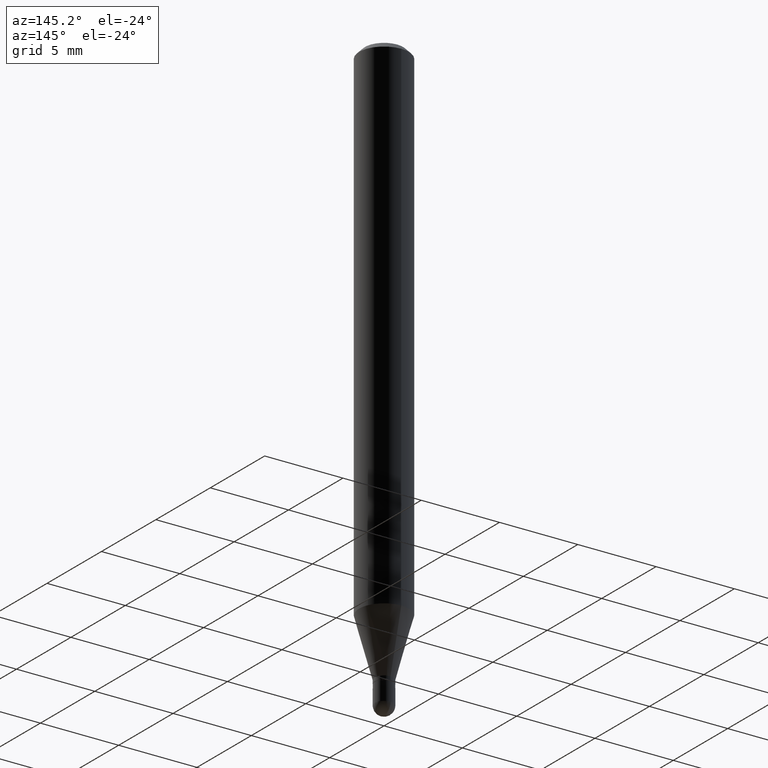
[diagram: clean part render]
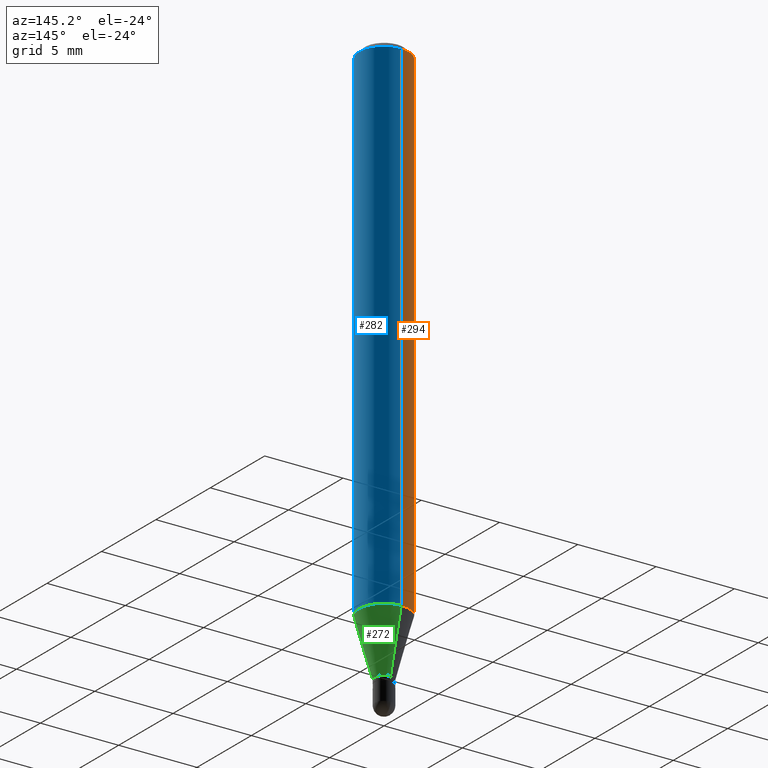
[diagram: same view with three faces highlighted in distinct colors, each labeled with its STEP entity id]
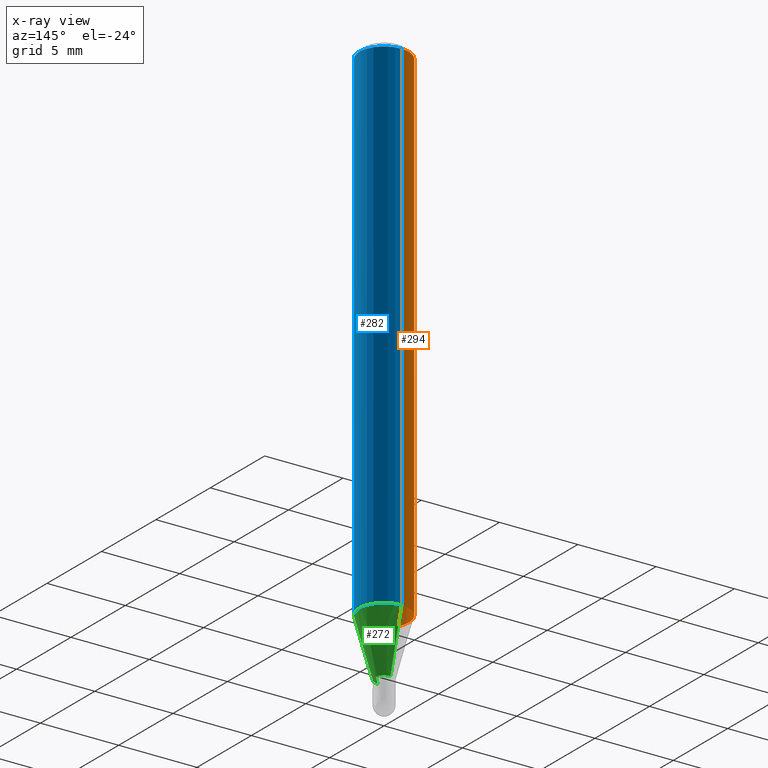
[diagram: x-ray of the same camera — body ghosted, the three highlighted faces saturated]
A machine part, auxiliary view with three faces highlighted in distinct colors.
The next image is the same camera in x-ray (body ghosted, the three faces saturated) — at least one of them is partly hidden behind the body in this view.
Their STEP definitions:

[orange] entity #294 — the highlighted cylindrical surface (edge-blend (fillet) strip) has radius 1.5875 mm, axis along (-0, 0, 1).
#9 = DIRECTION ( 'NONE',  ( -6.982962677686265922E-15, -1.000000000000000000, 3.491488316391355561E-15 ) ) ;
#12 = VERTEX_POINT ( 'NONE', #70 ) ;
#38 = AXIS2_PLACEMENT_3D ( 'NONE', #206, #88, #9 ) ;
#62 = LINE ( 'NONE', #106, #351 ) ;
#70 = CARTESIAN_POINT ( 'NONE',  ( -4.364351673553912750E-16, -0.06250000000000005551, -0.01500000000000011047 ) ) ;
#77 = EDGE_CURVE ( 'NONE', #389, #12, #337, .T. ) ;
#88 = DIRECTION ( 'NONE',  ( -2.445463933789263379E-29, 3.491488316391355561E-15, 1.000000000000000000 ) ) ;
#92 = DIRECTION ( 'NONE',  ( -2.445463933789263379E-29, 3.491488316391355561E-15, 1.000000000000000000 ) ) ;
#96 = CIRCLE ( 'NONE', #235, 0.06250000000000000000 ) ;
#106 = CARTESIAN_POINT ( 'NONE',  ( 4.440892098500625669E-16, 0.06250000000000000000, -2.182180197744597225E-16 ) ) ;
#130 = DIRECTION ( 'NONE',  ( -2.445463933789263379E-29, 3.491488316391355561E-15, 1.000000000000000000 ) ) ;
#131 = CARTESIAN_POINT ( 'NONE',  ( 4.440892098500934804E-16, 0.06249999999999553135, -1.273450018504814762 ) ) ;
#138 = DIRECTION ( 'NONE',  ( -2.445463933789263099E-29, 3.491488316391355955E-15, 1.000000000000000000 ) ) ;
#141 = CIRCLE ( 'NONE', #396, 0.06250000000000000000 ) ;
#187 = CARTESIAN_POINT ( 'NONE',  ( -4.364351673553606573E-16, -0.06250000000000446865, -1.273450018504814096 ) ) ;
#206 = CARTESIAN_POINT ( 'NONE',  ( 0.000000000000000000, 0.000000000000000000, 0.000000000000000000 ) ) ;
#210 = CARTESIAN_POINT ( 'NONE',  ( 3.114176091736793656E-29, -4.446235861117914708E-15, -1.273450018504814318 ) ) ;
#221 = ORIENTED_EDGE ( 'NONE', *, *, #301, .T. ) ;
#234 = ORIENTED_EDGE ( 'NONE', *, *, #293, .F. ) ;
#235 = AXIS2_PLACEMENT_3D ( 'NONE', #482, #92, #251 ) ;
#243 = EDGE_CURVE ( 'NONE', #353, #355, #62, .T. ) ;
#250 = CARTESIAN_POINT ( 'NONE',  ( 4.440892098500938748E-16, 0.06249999999999995143, -0.01500000000000054588 ) ) ;
#251 = DIRECTION ( 'NONE',  ( -6.982962677686265922E-15, -1.000000000000000000, 3.483106191921935554E-15 ) ) ;
#270 = DIRECTION ( 'NONE',  ( -2.445463933789263099E-29, 3.491488316391355955E-15, 1.000000000000000000 ) ) ;
#293 = EDGE_CURVE ( 'NONE', #355, #12, #96, .T. ) ;
#294 = ADVANCED_FACE ( 'NONE', ( #329 ), #418, .T. ) ;
#301 = EDGE_CURVE ( 'NONE', #353, #389, #141, .T. ) ;
#329 = FACE_OUTER_BOUND ( 'NONE', #459, .T. ) ;
#337 = LINE ( 'NONE', #493, #408 ) ;
#351 = VECTOR ( 'NONE', #270, 39.37007874015748143 ) ;
#353 = VERTEX_POINT ( 'NONE', #131 ) ;
#355 = VERTEX_POINT ( 'NONE', #250 ) ;
#389 = VERTEX_POINT ( 'NONE', #187 ) ;
#396 = AXIS2_PLACEMENT_3D ( 'NONE', #210, #130, #487 ) ;
#401 = ORIENTED_EDGE ( 'NONE', *, *, #243, .F. ) ;
#408 = VECTOR ( 'NONE', #138, 39.37007874015748143 ) ;
#418 = CYLINDRICAL_SURFACE ( 'NONE', #38, 0.06250000000000000000 ) ;
#459 = EDGE_LOOP ( 'NONE', ( #401, #221, #491, #234 ) ) ;
#482 = CARTESIAN_POINT ( 'NONE',  ( 3.668195900683975486E-31, -5.237232474587148071E-17, -0.01500000000000032904 ) ) ;
#487 = DIRECTION ( 'NONE',  ( -6.982962677686265922E-15, -1.000000000000000000, 4.370956789862821150E-15 ) ) ;
#491 = ORIENTED_EDGE ( 'NONE', *, *, #77, .T. ) ;
#493 = CARTESIAN_POINT ( 'NONE',  ( -4.364351673553916201E-16, -0.06250000000000000000, 2.182180197744597225E-16 ) ) ;

[blue] entity #282 — the highlighted cylindrical surface (edge-blend (fillet) strip) has radius 1.5875 mm, axis along (-0, 0, 1).
#12 = VERTEX_POINT ( 'NONE', #70 ) ;
#62 = LINE ( 'NONE', #106, #351 ) ;
#70 = CARTESIAN_POINT ( 'NONE',  ( -4.364351673553912750E-16, -0.06250000000000005551, -0.01500000000000011047 ) ) ;
#74 = DIRECTION ( 'NONE',  ( -6.982962677686265922E-15, -1.000000000000000000, 3.491488316391355561E-15 ) ) ;
#77 = EDGE_CURVE ( 'NONE', #389, #12, #337, .T. ) ;
#83 = CYLINDRICAL_SURFACE ( 'NONE', #324, 0.06250000000000000000 ) ;
#97 = ORIENTED_EDGE ( 'NONE', *, *, #120, .F. ) ;
#106 = CARTESIAN_POINT ( 'NONE',  ( 4.440892098500625669E-16, 0.06250000000000000000, -2.182180197744597225E-16 ) ) ;
#117 = ORIENTED_EDGE ( 'NONE', *, *, #467, .T. ) ;
#120 = EDGE_CURVE ( 'NONE', #12, #355, #121, .T. ) ;
#121 = CIRCLE ( 'NONE', #445, 0.06250000000000000000 ) ;
#131 = CARTESIAN_POINT ( 'NONE',  ( 4.440892098500934804E-16, 0.06249999999999553135, -1.273450018504814762 ) ) ;
#132 = CIRCLE ( 'NONE', #212, 0.06250000000000000000 ) ;
#138 = DIRECTION ( 'NONE',  ( -2.445463933789263099E-29, 3.491488316391355955E-15, 1.000000000000000000 ) ) ;
#153 = ORIENTED_EDGE ( 'NONE', *, *, #77, .F. ) ;
#177 = DIRECTION ( 'NONE',  ( -2.445463933789263379E-29, 3.491488316391355561E-15, 1.000000000000000000 ) ) ;
#187 = CARTESIAN_POINT ( 'NONE',  ( -4.364351673553606573E-16, -0.06250000000000446865, -1.273450018504814096 ) ) ;
#212 = AXIS2_PLACEMENT_3D ( 'NONE', #358, #507, #315 ) ;
#239 = ORIENTED_EDGE ( 'NONE', *, *, #243, .T. ) ;
#243 = EDGE_CURVE ( 'NONE', #353, #355, #62, .T. ) ;
#250 = CARTESIAN_POINT ( 'NONE',  ( 4.440892098500938748E-16, 0.06249999999999995143, -0.01500000000000054588 ) ) ;
#270 = DIRECTION ( 'NONE',  ( -2.445463933789263099E-29, 3.491488316391355955E-15, 1.000000000000000000 ) ) ;
#282 = ADVANCED_FACE ( 'NONE', ( #328 ), #83, .T. ) ;
#315 = DIRECTION ( 'NONE',  ( -6.982962677686265922E-15, -1.000000000000000000, 4.370956789862821150E-15 ) ) ;
#324 = AXIS2_PLACEMENT_3D ( 'NONE', #405, #485, #74 ) ;
#328 = FACE_OUTER_BOUND ( 'NONE', #348, .T. ) ;
#337 = LINE ( 'NONE', #493, #408 ) ;
#348 = EDGE_LOOP ( 'NONE', ( #117, #239, #97, #153 ) ) ;
#351 = VECTOR ( 'NONE', #270, 39.37007874015748143 ) ;
#353 = VERTEX_POINT ( 'NONE', #131 ) ;
#355 = VERTEX_POINT ( 'NONE', #250 ) ;
#358 = CARTESIAN_POINT ( 'NONE',  ( 3.114176091736793656E-29, -4.446235861117914708E-15, -1.273450018504814318 ) ) ;
#382 = CARTESIAN_POINT ( 'NONE',  ( 3.668195900683975486E-31, -5.237232474587148071E-17, -0.01500000000000032904 ) ) ;
#389 = VERTEX_POINT ( 'NONE', #187 ) ;
#405 = CARTESIAN_POINT ( 'NONE',  ( 0.000000000000000000, 0.000000000000000000, 0.000000000000000000 ) ) ;
#408 = VECTOR ( 'NONE', #138, 39.37007874015748143 ) ;
#445 = AXIS2_PLACEMENT_3D ( 'NONE', #382, #177, #494 ) ;
#467 = EDGE_CURVE ( 'NONE', #389, #353, #132, .T. ) ;
#485 = DIRECTION ( 'NONE',  ( -2.445463933789263379E-29, 3.491488316391355561E-15, 1.000000000000000000 ) ) ;
#493 = CARTESIAN_POINT ( 'NONE',  ( -4.364351673553916201E-16, -0.06250000000000000000, 2.182180197744597225E-16 ) ) ;
#494 = DIRECTION ( 'NONE',  ( -6.982962677686265922E-15, -1.000000000000000000, 3.483106191921935554E-15 ) ) ;
#507 = DIRECTION ( 'NONE',  ( -2.445463933789263379E-29, 3.491488316391355561E-15, 1.000000000000000000 ) ) ;

[green] entity #272 — the highlighted conical surface has half-angle 15 deg.
#5 = LINE ( 'NONE', #370, #29 ) ;
#29 = VECTOR ( 'NONE', #366, 39.37007874015748143 ) ;
#91 = CARTESIAN_POINT ( 'NONE',  ( 3.470113322046965911E-29, -4.954421920959333944E-15, -1.419000000000000261 ) ) ;
#107 = EDGE_CURVE ( 'NONE', #266, #457, #316, .T. ) ;
#116 = VECTOR ( 'NONE', #287, 39.37007874015748143 ) ;
#131 = CARTESIAN_POINT ( 'NONE',  ( 4.440892098500934804E-16, 0.06249999999999553135, -1.273450018504814762 ) ) ;
#132 = CIRCLE ( 'NONE', #212, 0.06250000000000000000 ) ;
#134 = CARTESIAN_POINT ( 'NONE',  ( 1.669775429036576870E-16, 0.02349999999999496936, -1.419000000000000261 ) ) ;
#150 = ORIENTED_EDGE ( 'NONE', *, *, #467, .F. ) ;
#168 = LINE ( 'NONE', #134, #116 ) ;
#187 = CARTESIAN_POINT ( 'NONE',  ( -4.364351673553606573E-16, -0.06250000000000446865, -1.273450018504814096 ) ) ;
#212 = AXIS2_PLACEMENT_3D ( 'NONE', #358, #507, #315 ) ;
#230 = EDGE_LOOP ( 'NONE', ( #465, #427, #150, #386 ) ) ;
#241 = DIRECTION ( 'NONE',  ( -2.445463933789263379E-29, 3.491488316391355561E-15, 1.000000000000000000 ) ) ;
#252 = EDGE_CURVE ( 'NONE', #266, #389, #5, .T. ) ;
#266 = VERTEX_POINT ( 'NONE', #411 ) ;
#272 = ADVANCED_FACE ( 'NONE', ( #288 ), #384, .T. ) ;
#287 = DIRECTION ( 'NONE',  ( 1.839019923739601104E-15, 0.2588190451025250693, 0.9659258262890670910 ) ) ;
#288 = FACE_OUTER_BOUND ( 'NONE', #230, .T. ) ;
#311 = AXIS2_PLACEMENT_3D ( 'NONE', #91, #241, #417 ) ;
#315 = DIRECTION ( 'NONE',  ( -6.982962677686265922E-15, -1.000000000000000000, 4.370956789862821150E-15 ) ) ;
#316 = CIRCLE ( 'NONE', #340, 0.02349999999999992373 ) ;
#340 = AXIS2_PLACEMENT_3D ( 'NONE', #499, #503, #378 ) ;
#353 = VERTEX_POINT ( 'NONE', #131 ) ;
#358 = CARTESIAN_POINT ( 'NONE',  ( 3.114176091736793656E-29, -4.446235861117914708E-15, -1.273450018504814318 ) ) ;
#363 = EDGE_CURVE ( 'NONE', #457, #353, #168, .T. ) ;
#366 = DIRECTION ( 'NONE',  ( -1.807323732225330928E-15, -0.2588190451025182970, 0.9659258262890689783 ) ) ;
#370 = CARTESIAN_POINT ( 'NONE',  ( -1.640996229255920244E-16, -0.02350000000000488157, -1.419000000000000261 ) ) ;
#378 = DIRECTION ( 'NONE',  ( -6.982962677686266711E-15, -1.000000000000000000, 0.000000000000000000 ) ) ;
#384 = CONICAL_SURFACE ( 'NONE', #311, 0.02349999999999992373, 0.2617993877991502960 ) ;
#386 = ORIENTED_EDGE ( 'NONE', *, *, #252, .F. ) ;
#389 = VERTEX_POINT ( 'NONE', #187 ) ;
#399 = CARTESIAN_POINT ( 'NONE',  ( 3.055333763768757932E-16, 0.02349999999999496589, -1.419000000000000261 ) ) ;
#411 = CARTESIAN_POINT ( 'NONE',  ( -1.640996229255920244E-16, -0.02350000000000488157, -1.419000000000000261 ) ) ;
#417 = DIRECTION ( 'NONE',  ( -6.982962677686266711E-15, -1.000000000000000000, 0.000000000000000000 ) ) ;
#427 = ORIENTED_EDGE ( 'NONE', *, *, #363, .T. ) ;
#457 = VERTEX_POINT ( 'NONE', #399 ) ;
#465 = ORIENTED_EDGE ( 'NONE', *, *, #107, .T. ) ;
#467 = EDGE_CURVE ( 'NONE', #389, #353, #132, .T. ) ;
#499 = CARTESIAN_POINT ( 'NONE',  ( 3.470113322046965911E-29, -4.954421920959333944E-15, -1.419000000000000261 ) ) ;
#503 = DIRECTION ( 'NONE',  ( -2.445463933789263379E-29, 3.491488316391355561E-15, 1.000000000000000000 ) ) ;
#507 = DIRECTION ( 'NONE',  ( -2.445463933789263379E-29, 3.491488316391355561E-15, 1.000000000000000000 ) ) ;